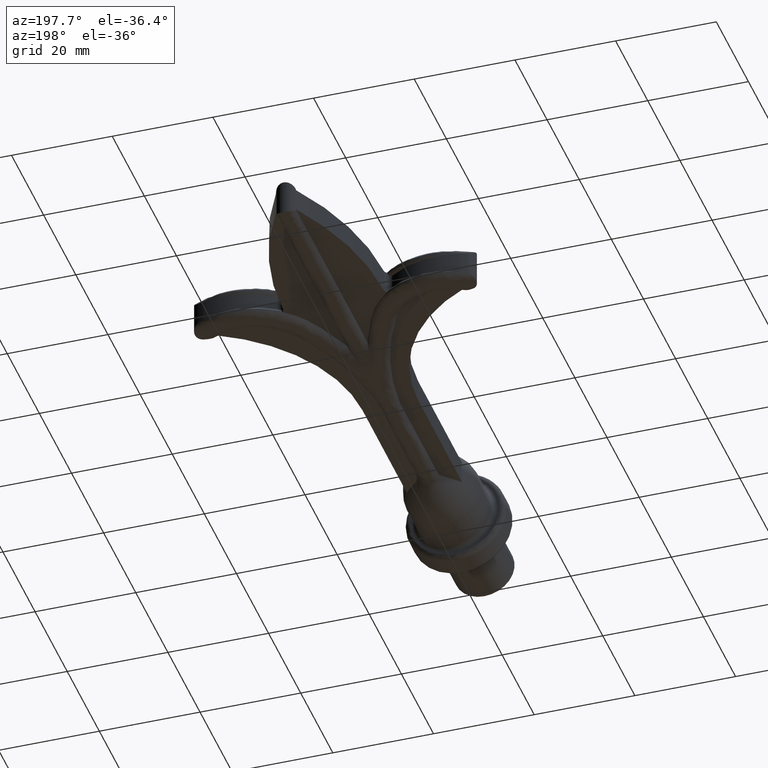
[diagram: clean part render]
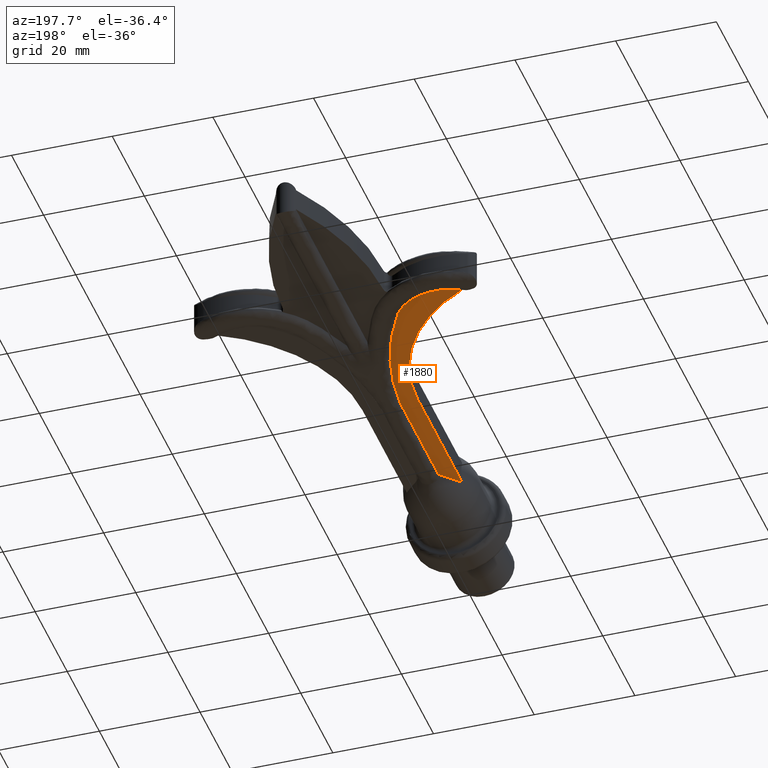
[diagram: same view with one face highlighted and labeled with its STEP entity id]
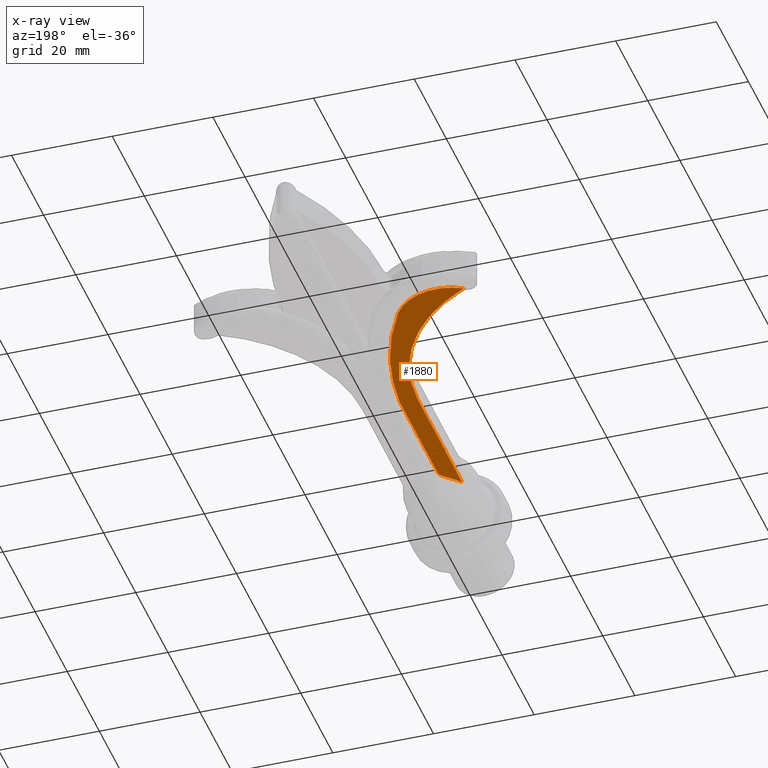
[diagram: x-ray of the same camera — body ghosted, the highlighted face saturated]
A machine part, auxiliary view. The second image highlights one B-rep face of the part: STEP entity #1880.
The next image is the same camera in x-ray: the body ghosted, the highlighted face saturated — about 0% of this face is hidden behind the body in this view.
In plain terms, the highlighted planar face has unit normal (0, 0, 1).
Its self-contained STEP definition (entity closure, byte-faithful):
#96 = CARTESIAN_POINT ( 'NONE',  ( -24.19831013008752407, 21.06089616784457874, -2.250000000000000888 ) ) ;
#385 = CARTESIAN_POINT ( 'NONE',  ( -4.725754925820213614, 4.741299643282160581, -2.250000000000000000 ) ) ;
#685 = DIRECTION ( 'NONE',  ( 0.000000000000000000, 0.000000000000000000, 1.000000000000000000 ) ) ;
#725 = DIRECTION ( 'NONE',  ( 1.000000000000000000, 0.000000000000000000, 0.000000000000000000 ) ) ;
#831 = DIRECTION ( 'NONE',  ( -0.000000000000000000, -0.000000000000000000, 1.000000000000000000 ) ) ;
#1122 = ORIENTED_EDGE ( 'NONE', *, *, #8684, .T. ) ;
#1185 = LINE ( 'NONE', #3131, #12867 ) ;
#1320 = VERTEX_POINT ( 'NONE', #5261 ) ;
#1495 = CARTESIAN_POINT ( 'NONE',  ( -2.919986943536946544, -2.547756134048474674, -2.250000000000001776 ) ) ;
#1593 = CARTESIAN_POINT ( 'NONE',  ( -2.337768139618806806, -6.257629043695626336, -2.250000000000001332 ) ) ;
#1670 = CARTESIAN_POINT ( 'NONE',  ( -2.328282237700450175, -34.57920250723412181, -2.250000000000000000 ) ) ;
#1692 = CARTESIAN_POINT ( 'NONE',  ( -16.04736835590449573, 21.71527909538065515, -2.250000000000001776 ) ) ;
#1819 = EDGE_CURVE ( 'NONE', #1320, #2214, #6056, .T. ) ;
#1880 = ADVANCED_FACE ( 'NONE', ( #12926 ), #2992, .F. ) ;
#1926 = CARTESIAN_POINT ( 'NONE',  ( -4.430159336345254495, -36.71094530625479990, -2.250000000000000000 ) ) ;
#2048 = ORIENTED_EDGE ( 'NONE', *, *, #7507, .T. ) ;
#2111 = B_SPLINE_CURVE_WITH_KNOTS ( 'NONE', 3,
 ( #7447, #3866, #7256, #14047, #1670, #2821 ),
 .UNSPECIFIED., .F., .F.,
 ( 4, 2, 4 ),
 ( 3.049906857657526483E-07, 0.001601140582204586002, 0.003201976173723405927 ),
 .UNSPECIFIED. ) ;
#2214 = VERTEX_POINT ( 'NONE', #13074 ) ;
#2341 = EDGE_LOOP ( 'NONE', ( #5723, #2048, #8108, #1122, #13145, #7837 ) ) ;
#2385 = CARTESIAN_POINT ( 'NONE',  ( -22.48052273371741450, 21.81134387635706062, -2.249999999999997780 ) ) ;
#2561 = VERTEX_POINT ( 'NONE', #7375 ) ;
#2584 = VERTEX_POINT ( 'NONE', #11847 ) ;
#2590 = CARTESIAN_POINT ( 'NONE',  ( -3.291206529742098930, -0.7055149666553134358, -2.249999999999999112 ) ) ;
#2656 = LINE ( 'NONE', #11291, #8996 ) ;
#2821 = CARTESIAN_POINT ( 'NONE',  ( -1.999999999999999556, -34.15704797630281320, -2.250000000000000000 ) ) ;
#2992 = PLANE ( 'NONE',  #14426 ) ;
#3131 = CARTESIAN_POINT ( 'NONE',  ( -1.999999999999999556, 64.00000000000000000, -2.250000000000000000 ) ) ;
#3738 = CARTESIAN_POINT ( 'NONE',  ( -2.000006093207118418, -9.999999999999998224, -2.250000000000134559 ) ) ;
#3786 = CARTESIAN_POINT ( 'NONE',  ( -6.703008912361073435, 10.01589497759060521, -2.250000000000000000 ) ) ;
#3866 = CARTESIAN_POINT ( 'NONE',  ( -3.773804087741206459, -36.15007595315656630, -2.250000000000000444 ) ) ;
#4071 = CARTESIAN_POINT ( 'NONE',  ( -4.183302087937226688, -36.50000059983787537, -2.250000000000000000 ) ) ;
#4211 = CARTESIAN_POINT ( 'NONE',  ( -5.102464988398763168, -37.40998315238685024, -2.250000000000000000 ) ) ;
#4218 = DIRECTION ( 'NONE',  ( 1.000000000000000000, 0.000000000000000000, 0.000000000000000000 ) ) ;
#4507 = CARTESIAN_POINT ( 'NONE',  ( -24.61697314110987378, 20.84523556333763850, -2.254171646362637116 ) ) ;
#4712 = EDGE_CURVE ( 'NONE', #4841, #9670, #13969, .T. ) ;
#4841 = VERTEX_POINT ( 'NONE', #5585 ) ;
#4869 = CARTESIAN_POINT ( 'NONE',  ( -10.33624176415837326, 17.11654057984210198, -2.250000000000003109 ) ) ;
#4917 = CARTESIAN_POINT ( 'NONE',  ( -21.58554758046971145, 22.06112451901470095, -2.250000000000000888 ) ) ;
#5199 = CARTESIAN_POINT ( 'NONE',  ( -5.499999999999995559, -37.92188935281078699, -2.250000000000000000 ) ) ;
#5261 = CARTESIAN_POINT ( 'NONE',  ( -5.499999999999995559, -37.92188935281078699, -2.250000000000000000 ) ) ;
#5585 = CARTESIAN_POINT ( 'NONE',  ( -5.499999999999991118, -10.34335035933024827, -2.250000000000000000 ) ) ;
#5723 = ORIENTED_EDGE ( 'NONE', *, *, #1819, .F. ) ;
#5943 = CARTESIAN_POINT ( 'NONE',  ( -23.77879521761375159, 21.27693553004967697, -2.249999999999995559 ) ) ;
#5995 = CARTESIAN_POINT ( 'NONE',  ( -11.14895665378619682, 18.26262553370780140, -2.250000000000009770 ) ) ;
#6056 = B_SPLINE_CURVE_WITH_KNOTS ( 'NONE', 3,
 ( #5199, #13091, #4211, #10868, #1926, #4071 ),
 .UNSPECIFIED., .F., .F.,
 ( 4, 2, 4 ),
 ( 0.005407699196652137469, 0.006367768122236821572, 0.007327837047821505675 ),
 .UNSPECIFIED. ) ;
#6145 = CARTESIAN_POINT ( 'NONE',  ( -19.72413120687838273, 22.27856710356394032, -2.250000000000000000 ) ) ;
#6192 = CARTESIAN_POINT ( 'NONE',  ( -10.59220191886514684, 17.50875892013686652, -2.250000000000008438 ) ) ;
#6433 = CARTESIAN_POINT ( 'NONE',  ( -40.49999999999999289, -10.34335035933024471, -2.250000000000000000 ) ) ;
#7087 = CARTESIAN_POINT ( 'NONE',  ( -23.13504436214022064, 21.56360661313473770, -2.249999999999995115 ) ) ;
#7188 = CARTESIAN_POINT ( 'NONE',  ( -20.19289493986696016, 22.25437071873053441, -2.249999999999998224 ) ) ;
#7232 = CARTESIAN_POINT ( 'NONE',  ( -2.132571979410398555, -8.126393834641481462, -2.250000000000269562 ) ) ;
#7256 = CARTESIAN_POINT ( 'NONE',  ( -3.391188477392503842, -35.77624323928026939, -2.250000000000000000 ) ) ;
#7275 = CARTESIAN_POINT ( 'NONE',  ( -9.606056869822205968, 15.91418307517285236, -2.250000000000003553 ) ) ;
#7375 = CARTESIAN_POINT ( 'NONE',  ( -2.000006093207118418, -9.999999999999998224, -2.250000000000134559 ) ) ;
#7447 = CARTESIAN_POINT ( 'NONE',  ( -4.183302087937226688, -36.50000059983787537, -2.250000000000000000 ) ) ;
#7507 = EDGE_CURVE ( 'NONE', #1320, #4841, #2656, .T. ) ;
#7657 = AXIS2_PLACEMENT_3D ( 'NONE', #6433, #831, #4218 ) ;
#7837 = ORIENTED_EDGE ( 'NONE', *, *, #9021, .F. ) ;
#8108 = ORIENTED_EDGE ( 'NONE', *, *, #4712, .T. ) ;
#8252 = CARTESIAN_POINT ( 'NONE',  ( -8.313999916599685847, 13.40892815939250760, -2.250000000000000444 ) ) ;
#8299 = CARTESIAN_POINT ( 'NONE',  ( -9.169502339526454548, 15.08077979952537540, -2.250000000000001332 ) ) ;
#8345 = CARTESIAN_POINT ( 'NONE',  ( -11.45185035667598861, 18.62602086206925733, -2.250000000000036415 ) ) ;
#8398 = CARTESIAN_POINT ( 'NONE',  ( -15.61195498000185644, 21.55405025663272056, -2.249999999999998668 ) ) ;
#8684 = EDGE_CURVE ( 'NONE', #9670, #2561, #9123, .T. ) ;
#8996 = VECTOR ( 'NONE', #12594, 1000.000000000000000 ) ;
#9021 = EDGE_CURVE ( 'NONE', #2214, #2584, #2111, .T. ) ;
#9123 = B_SPLINE_CURVE_WITH_KNOTS ( 'NONE', 3,
 ( #10437, #96, #5943, #7087, #10345, #2385, #10478, #4917, #13940, #7188, #6145, #12949, #11747, #14026, #11601, #1692, #8398, #10526, #10623, #10675, #14069, #8345, #5995, #6192, #4869, #7275, #8299, #8252, #12861, #3786, #13890, #385, #12814, #2590, #1495, #1593, #7232, #3738 ),
 .UNSPECIFIED., .F., .F.,
 ( 4, 2, 2, 2, 2, 2, 2, 2, 2, 2, 2, 2, 2, 2, 2, 2, 2, 2, 4 ),
 ( 1.599647270592087204E-07, 0.001412384367972311511, 0.002118496569594932512, 0.002824608771217553948, 0.004236833174462796385, 0.005649057577708038388, 0.007061281980953282127, 0.008473506384198524130, 0.009885730787443767001, 0.01129795519068900987, 0.01412240399717949388, 0.01553462840042473155, 0.01694685280366997268, 0.01977130161016044455, 0.02259575041665091641, 0.02824464802963186014, 0.03389354564261280733, 0.03954244325559375106, 0.04519134086857468785 ),
 .UNSPECIFIED. ) ;
#9463 = EDGE_CURVE ( 'NONE', #2561, #2584, #1185, .T. ) ;
#9670 = VERTEX_POINT ( 'NONE', #4507 ) ;
#9838 = CARTESIAN_POINT ( 'NONE',  ( 4.428493575385978843E-16, 54.00000000000000000, -2.250000000000000000 ) ) ;
#10345 = CARTESIAN_POINT ( 'NONE',  ( -22.91865372825261105, 21.65263170368233503, -2.249999999999997335 ) ) ;
#10437 = CARTESIAN_POINT ( 'NONE',  ( -24.61697314110987378, 20.84523556333763850, -2.254171646362637116 ) ) ;
#10478 = CARTESIAN_POINT ( 'NONE',  ( -22.25867018858491164, 21.88062543786392666, -2.250000000000000444 ) ) ;
#10526 = CARTESIAN_POINT ( 'NONE',  ( -14.76337510132776742, 21.17412777837628823, -2.249999999999997780 ) ) ;
#10623 = CARTESIAN_POINT ( 'NONE',  ( -14.34844947528617709, 20.95491050503660091, -2.249999999999999556 ) ) ;
#10675 = CARTESIAN_POINT ( 'NONE',  ( -13.14684680056945609, 20.21926707694568748, -2.250000000000000000 ) ) ;
#10868 = CARTESIAN_POINT ( 'NONE',  ( -4.663177568037719212, -36.93531094303977369, -2.250000000000000000 ) ) ;
#11291 = CARTESIAN_POINT ( 'NONE',  ( -5.499999999999991118, -10.34335035933024827, -2.250000000000000000 ) ) ;
#11601 = CARTESIAN_POINT ( 'NONE',  ( -16.94133092385697736, 21.97797578725353773, -2.250000000000002220 ) ) ;
#11747 = CARTESIAN_POINT ( 'NONE',  ( -18.32851251397507042, 22.22197669324629743, -2.249999999999997335 ) ) ;
#11847 = CARTESIAN_POINT ( 'NONE',  ( -1.999999999999999556, -34.15704797630281320, -2.250000000000000000 ) ) ;
#12243 = DIRECTION ( 'NONE',  ( 0.000000000000000000, -1.000000000000000000, 0.000000000000000000 ) ) ;
#12594 = DIRECTION ( 'NONE',  ( 1.709774086213724751E-16, 1.000000000000000000, 0.000000000000000000 ) ) ;
#12814 = CARTESIAN_POINT ( 'NONE',  ( -4.191660543171381370, 2.939109039108050325, -2.250000000000000444 ) ) ;
#12861 = CARTESIAN_POINT ( 'NONE',  ( -7.897798575652227981, 12.56700727343634760, -2.250000000000000444 ) ) ;
#12867 = VECTOR ( 'NONE', #12243, 1000.000000000000000 ) ;
#12926 = FACE_OUTER_BOUND ( 'NONE', #2341, .T. ) ;
#12949 = CARTESIAN_POINT ( 'NONE',  ( -18.79269039057967561, 22.26236030581272018, -2.250000000000000000 ) ) ;
#13074 = CARTESIAN_POINT ( 'NONE',  ( -4.183302087937226688, -36.50000059983787537, -2.250000000000000000 ) ) ;
#13091 = CARTESIAN_POINT ( 'NONE',  ( -5.309586929943846734, -37.66162718015450395, -2.250000000000000444 ) ) ;
#13145 = ORIENTED_EDGE ( 'NONE', *, *, #9463, .T. ) ;
#13890 = CARTESIAN_POINT ( 'NONE',  ( -5.981575602953722814, 8.281968525459351582, -2.250000000000000444 ) ) ;
#13940 = CARTESIAN_POINT ( 'NONE',  ( -21.12685482937731152, 22.14551076079942149, -2.249999999999998668 ) ) ;
#13969 = CIRCLE ( 'NONE', #7657, 35.00000000000000000 ) ;
#14026 = CARTESIAN_POINT ( 'NONE',  ( -17.40307058314913391, 22.08023255681069585, -2.249999999999997335 ) ) ;
#14047 = CARTESIAN_POINT ( 'NONE',  ( -2.668189967925956640, -34.99101781393565602, -2.250000000000000000 ) ) ;
#14069 = CARTESIAN_POINT ( 'NONE',  ( -12.42029254657042969, 19.63991412580459084, -2.250000000000036859 ) ) ;
#14426 = AXIS2_PLACEMENT_3D ( 'NONE', #9838, #685, #725 ) ;